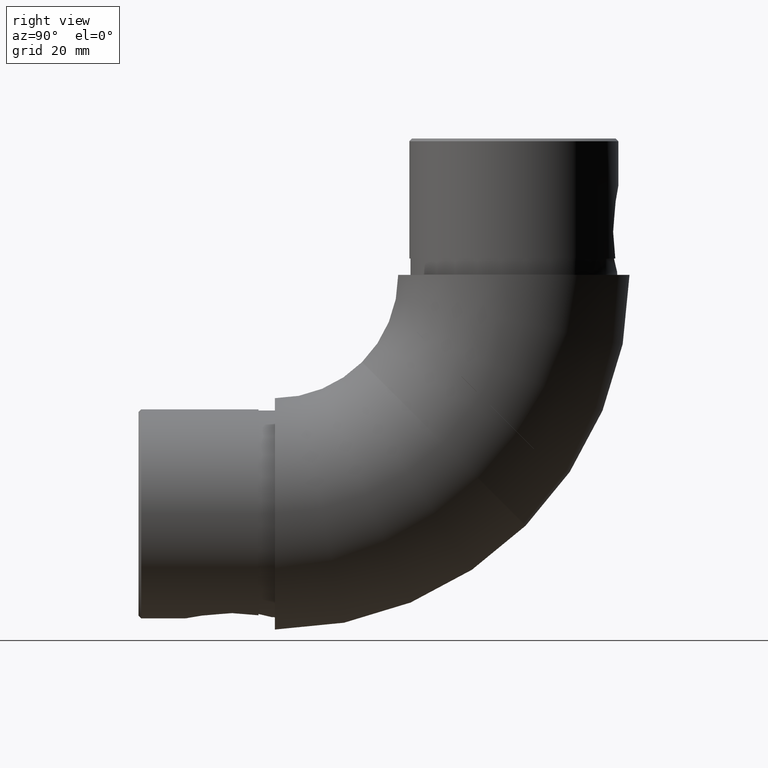
[diagram: clean part render]
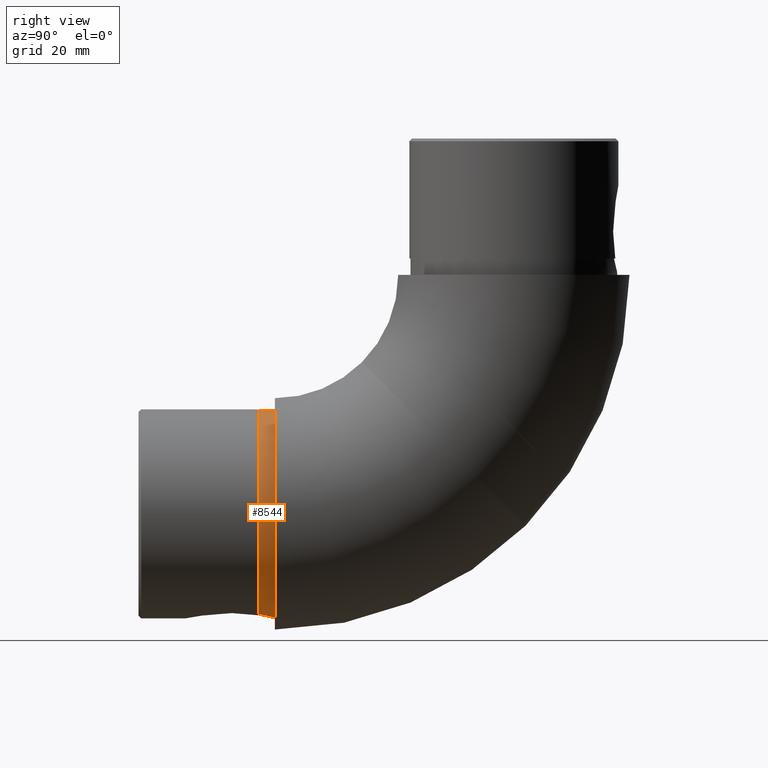
[diagram: same view with one face highlighted and labeled with its STEP entity id]
A machine part, right view. The second image highlights one B-rep face of the part: STEP entity #8544.
In plain terms, the highlighted cylindrical surface (bore or boss wall) has radius 18.95 mm, axis along (0, 1, 0).
Its self-contained STEP definition (entity closure, byte-faithful):
#59 = DIRECTION ( 'NONE',  ( 0.0000000000000000000, -1.000000000000000000, 0.0000000000000000000 ) ) ;
#121 = DIRECTION ( 'NONE',  ( 0.0000000000000000000, 0.0000000000000000000, -1.000000000000000000 ) ) ;
#321 = FACE_OUTER_BOUND ( 'NONE', #16570, .T. ) ;
#379 = CARTESIAN_POINT ( 'NONE',  ( 4.456171568348741700, -2.617241486684789700, -18.42062786771593600 ) ) ;
#490 = VERTEX_POINT ( 'NONE', #14276 ) ;
#789 = VERTEX_POINT ( 'NONE', #15601 ) ;
#889 = CARTESIAN_POINT ( 'NONE',  ( 2.269088307405674700, -0.9656796862081603600, -18.81491351189969300 ) ) ;
#1085 = CARTESIAN_POINT ( 'NONE',  ( 0.0000000000000000000, 0.0000000000000000000, 18.94999999999999900 ) ) ;
#1287 = DIRECTION ( 'NONE',  ( 0.0000000000000000000, 0.0000000000000000000, 1.000000000000000000 ) ) ;
#2065 = CARTESIAN_POINT ( 'NONE',  ( -4.456084320429762400, -2.617115151614169700, -18.42065030887411600 ) ) ;
#2115 = CARTESIAN_POINT ( 'NONE',  ( -0.4634541830040786500, -0.5174588180050463400, -18.94574411621549400 ) ) ;
#2282 = CARTESIAN_POINT ( 'NONE',  ( 2.884501284953691100, -1.277309474678783600, -18.73030157937042600 ) ) ;
#2422 = VERTEX_POINT ( 'NONE', #1085 ) ;
#3388 = CARTESIAN_POINT ( 'NONE',  ( 0.0000000000000000000, -3.000000000000000000, 0.0000000000000000000 ) ) ;
#3532 = CARTESIAN_POINT ( 'NONE',  ( 2.478530714171737900, -1.061242443183448000, -18.78833229469749700 ) ) ;
#3579 = CARTESIAN_POINT ( 'NONE',  ( -3.454437763080081300, -1.659581976155655600, -18.63346633385134500 ) ) ;
#3639 = CARTESIAN_POINT ( 'NONE',  ( -3.076984728125884900, -1.395305288981101300, -18.69950194140595900 ) ) ;
#3850 = AXIS2_PLACEMENT_3D ( 'NONE', #12201, #8204, #1287 ) ;
#3984 = CARTESIAN_POINT ( 'NONE',  ( 0.0000000000000000000, -3.000000000000000000, 0.0000000000000000000 ) ) ;
#4015 = EDGE_LOOP ( 'NONE', ( #15101 ) ) ;
#4844 = DIRECTION ( 'NONE',  ( 0.0000000000000000000, 0.0000000000000000000, 1.000000000000000000 ) ) ;
#4926 = CARTESIAN_POINT ( 'NONE',  ( -0.9257873952221896700, -0.5735731096330537500, -18.92878568729927100 ) ) ;
#4982 = CARTESIAN_POINT ( 'NONE',  ( -1.828199457073365700, -0.7819933462188952700, -18.86699311205316200 ) ) ;
#5057 = ORIENTED_EDGE ( 'NONE', *, *, #14038, .T. ) ;
#5073 = AXIS2_PLACEMENT_3D ( 'NONE', #3984, #59, #121 ) ;
#6051 = CARTESIAN_POINT ( 'NONE',  ( 4.720507382583127400, -3.000000000000000000, -18.35263768647379100 ) ) ;
#6165 = CARTESIAN_POINT ( 'NONE',  ( 0.9333366010842157900, -0.5603321638225633400, -18.93244720498669100 ) ) ;
#6228 = CARTESIAN_POINT ( 'NONE',  ( 0.4733284941916498000, -0.5040387248290479900, -18.94984717700020100 ) ) ;
#6868 = EDGE_CURVE ( 'NONE', #2422, #2422, #14152, .T. ) ;
#7678 = ORIENTED_EDGE ( 'NONE', *, *, #8337, .F. ) ;
#8044 = FACE_OUTER_BOUND ( 'NONE', #4015, .T. ) ;
#8204 = DIRECTION ( 'NONE',  ( -0.0000000000000000000, -1.000000000000000000, -0.0000000000000000000 ) ) ;
#8263 = CIRCLE ( 'NONE', #5073, 18.94999999999999900 ) ;
#8282 = CARTESIAN_POINT ( 'NONE',  ( 3.081027753353790600, -1.397816452723624100, -18.69884931801933100 ) ) ;
#8337 = EDGE_CURVE ( 'NONE', #789, #490, #8263, .T. ) ;
#8544 = ADVANCED_FACE ( 'NONE', ( #8044, #321 ), #13945, .T. ) ;
#8691 = CARTESIAN_POINT ( 'NONE',  ( 3.460972629196355400, -1.664486025257755800, -18.63226680505841400 ) ) ;
#8920 = CARTESIAN_POINT ( 'NONE',  ( 1.836987304308928200, -0.7997858435911463500, -18.86200439642824000 ) ) ;
#10690 = B_SPLINE_CURVE_WITH_KNOTS ( 'NONE', 3,
 ( #6051, #379, #15427, #10925, #8691, #8282, #2282, #3532, #889, #8920, #16830, #6165, #6228, #15713, #2115, #4926, #12922, #4982, #11566, #11680, #3639, #3579, #15593, #15537, #2065, #11517 ),
 .UNSPECIFIED., .F., .F.,
 ( 4, 2, 2, 2, 2, 2, 2, 2, 2, 2, 2, 2, 4 ),
 ( 6.447129612864634300E-018, 0.001391681140657546700, 0.002087521710986316900, 0.002783362281315086800, 0.003479202851643856800, 0.004175043421972626800, 0.005566724562630166700, 0.006262565132958936700, 0.006958405703287706700, 0.008350086843945248400, 0.009045927414274018300, 0.009741767984602788300, 0.01113344912526032700 ),
 .UNSPECIFIED. ) ;
#10925 = CARTESIAN_POINT ( 'NONE',  ( 3.642574648872877000, -1.809573853338567700, -18.59743246982192100 ) ) ;
#11250 = DIRECTION ( 'NONE',  ( -0.0000000000000000000, 1.000000000000000000, -0.0000000000000000000 ) ) ;
#11517 = CARTESIAN_POINT ( 'NONE',  ( -4.720507382583125600, -3.000000000000000000, -18.35263768647379100 ) ) ;
#11566 = CARTESIAN_POINT ( 'NONE',  ( -2.269959576167806900, -0.9506891670666632900, -18.81805060554480500 ) ) ;
#11680 = CARTESIAN_POINT ( 'NONE',  ( -2.880861172436755000, -1.275149102214045300, -18.73086891131099200 ) ) ;
#12201 = CARTESIAN_POINT ( 'NONE',  ( 0.0000000000000000000, 0.0000000000000000000, 0.0000000000000000000 ) ) ;
#12922 = CARTESIAN_POINT ( 'NONE',  ( -1.153755121173004600, -0.6154241842410159700, -18.91618776885669100 ) ) ;
#13945 = CYLINDRICAL_SURFACE ( 'NONE', #15932, 18.94999999999999900 ) ;
#14038 = EDGE_CURVE ( 'NONE', #789, #490, #10690, .T. ) ;
#14152 = CIRCLE ( 'NONE', #3850, 18.94999999999999900 ) ;
#14276 = CARTESIAN_POINT ( 'NONE',  ( -4.720507382583125600, -3.000000000000000000, -18.35263768647379100 ) ) ;
#15101 = ORIENTED_EDGE ( 'NONE', *, *, #6868, .T. ) ;
#15427 = CARTESIAN_POINT ( 'NONE',  ( 4.154475661604963400, -2.271399849363441100, -18.49227433675818600 ) ) ;
#15537 = CARTESIAN_POINT ( 'NONE',  ( -4.153300081226386300, -2.269715558643655500, -18.49259820580472900 ) ) ;
#15593 = CARTESIAN_POINT ( 'NONE',  ( -3.636731607444943400, -1.804620104247031600, -18.59859082583739100 ) ) ;
#15601 = CARTESIAN_POINT ( 'NONE',  ( 4.720507382583127400, -3.000000000000000000, -18.35263768647379100 ) ) ;
#15713 = CARTESIAN_POINT ( 'NONE',  ( -0.2274266071514857700, -0.5032908905715342000, -18.95007491046218800 ) ) ;
#15932 = AXIS2_PLACEMENT_3D ( 'NONE', #3388, #11250, #4844 ) ;
#16570 = EDGE_LOOP ( 'NONE', ( #5057, #7678 ) ) ;
#16830 = CARTESIAN_POINT ( 'NONE',  ( 1.612608367755040000, -0.7290839750126718600, -18.88262529012794400 ) ) ;